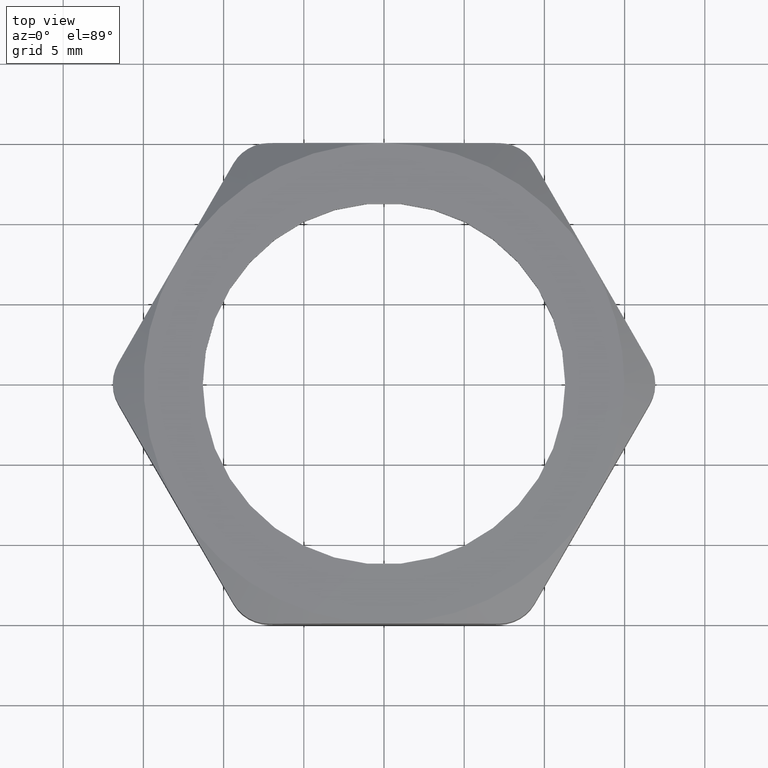
[diagram: clean part render]
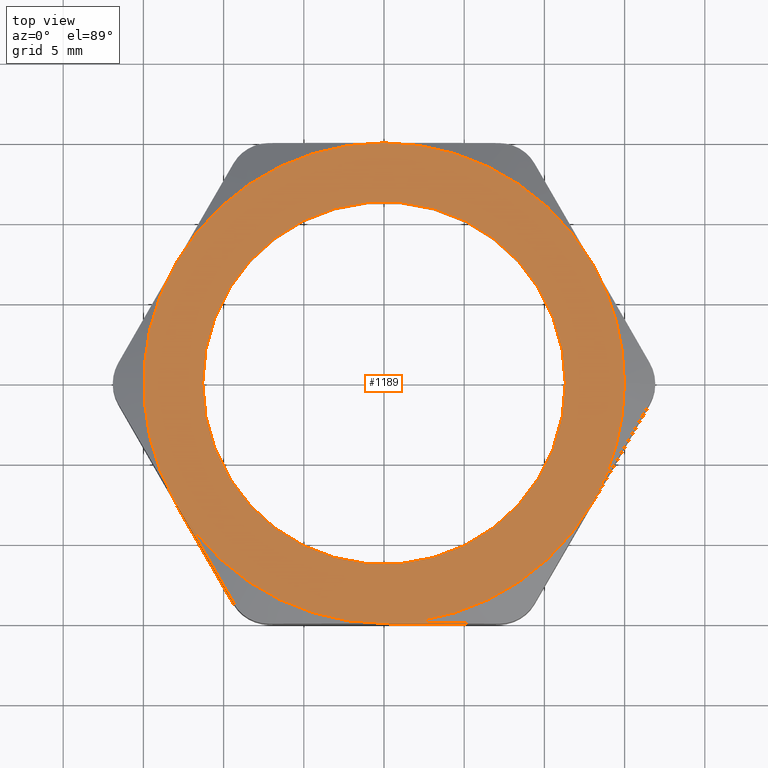
[diagram: same view with one face highlighted and labeled with its STEP entity id]
A machine part, top view. The second image highlights one B-rep face of the part: STEP entity #1189.
In plain terms, the highlighted planar face has unit normal (0, 0, -1).
Its self-contained STEP definition (entity closure, byte-faithful):
#248 = DIRECTION ( 'NONE',  ( 1.000000000000000000, 0.0000000000000000000, 0.0000000000000000000 ) ) ;
#249 = DIRECTION ( 'NONE',  ( 0.0000000000000000000, 0.0000000000000000000, 1.000000000000000000 ) ) ;
#250 = CARTESIAN_POINT ( 'NONE',  ( 0.0000000000000000000, 0.0000000000000000000, 0.2399999999999999900 ) ) ;
#251 = AXIS2_PLACEMENT_3D ( 'NONE', #250, #249, #248 ) ;
#252 = CIRCLE ( 'NONE', #251, 0.5900000000000000800 ) ;
#359 = CARTESIAN_POINT ( 'NONE',  ( 0.5109549882328191500, 0.2950000000000001000, 0.2399999999999999900 ) ) ;
#385 = CARTESIAN_POINT ( 'NONE',  ( 0.4450000000000000100, 5.572142936120458300E-017, 0.2399999999999999900 ) ) ;
#386 = CARTESIAN_POINT ( 'NONE',  ( -0.4450000000000000100, 0.0000000000000000000, 0.2399999999999999900 ) ) ;
#387 = DIRECTION ( 'NONE',  ( 1.000000000000000000, 0.0000000000000000000, 0.0000000000000000000 ) ) ;
#388 = DIRECTION ( 'NONE',  ( 0.0000000000000000000, 0.0000000000000000000, 1.000000000000000000 ) ) ;
#389 = AXIS2_PLACEMENT_3D ( 'NONE', #394, #388, #387 ) ;
#390 = CIRCLE ( 'NONE', #389, 0.4450000000000000100 ) ;
#394 = CARTESIAN_POINT ( 'NONE',  ( 0.0000000000000000000, 0.0000000000000000000, 0.2399999999999999900 ) ) ;
#447 = CARTESIAN_POINT ( 'NONE',  ( 0.5900000000000000800, 0.0000000000000000000, 0.2399999999999999900 ) ) ;
#606 = CARTESIAN_POINT ( 'NONE',  ( -0.5109549882328189300, -0.2949999999999997600, 0.2399999999999999900 ) ) ;
#758 = CARTESIAN_POINT ( 'NONE',  ( 0.5109549882328188200, -0.2950000000000000400, 0.2399999999999999900 ) ) ;
#856 = CARTESIAN_POINT ( 'NONE',  ( -0.5109549882328188200, 0.2949999999999999800, 0.2399999999999999900 ) ) ;
#940 = CARTESIAN_POINT ( 'NONE',  ( 5.914624404477003900E-017, -0.5899999999999999700, 0.2399999999999999900 ) ) ;
#1182 = ORIENTED_EDGE ( 'NONE', *, *, #1183, .T. ) ;
#1183 = EDGE_CURVE ( 'NONE', #2058, #2539, #1494, .T. ) ;
#1189 = ADVANCED_FACE ( 'NONE', ( #1694, #1605 ), #1693, .F. ) ;
#1190 = EDGE_LOOP ( 'NONE', ( #1193, #2524 ) ) ;
#1193 = ORIENTED_EDGE ( 'NONE', *, *, #2088, .F. ) ;
#1353 = DIRECTION ( 'NONE',  ( 1.000000000000000000, 0.0000000000000000000, 0.0000000000000000000 ) ) ;
#1354 = DIRECTION ( 'NONE',  ( 0.0000000000000000000, 0.0000000000000000000, 1.000000000000000000 ) ) ;
#1355 = CARTESIAN_POINT ( 'NONE',  ( 0.0000000000000000000, 0.0000000000000000000, 0.2399999999999999900 ) ) ;
#1356 = AXIS2_PLACEMENT_3D ( 'NONE', #1355, #1354, #1353 ) ;
#1357 = CIRCLE ( 'NONE', #1356, 0.5900000000000000800 ) ;
#1359 = DIRECTION ( 'NONE',  ( 1.000000000000000000, 0.0000000000000000000, 0.0000000000000000000 ) ) ;
#1360 = DIRECTION ( 'NONE',  ( 0.0000000000000000000, 0.0000000000000000000, 1.000000000000000000 ) ) ;
#1361 = CARTESIAN_POINT ( 'NONE',  ( 0.0000000000000000000, 0.0000000000000000000, 0.2399999999999999900 ) ) ;
#1362 = AXIS2_PLACEMENT_3D ( 'NONE', #1361, #1360, #1359 ) ;
#1363 = CIRCLE ( 'NONE', #1362, 0.4450000000000000100 ) ;
#1364 = DIRECTION ( 'NONE',  ( 1.000000000000000000, 0.0000000000000000000, 0.0000000000000000000 ) ) ;
#1365 = DIRECTION ( 'NONE',  ( 0.0000000000000000000, 0.0000000000000000000, 1.000000000000000000 ) ) ;
#1366 = AXIS2_PLACEMENT_3D ( 'NONE', #1373, #1365, #1364 ) ;
#1367 = CIRCLE ( 'NONE', #1366, 0.5900000000000000800 ) ;
#1368 = DIRECTION ( 'NONE',  ( 1.000000000000000000, 0.0000000000000000000, 0.0000000000000000000 ) ) ;
#1369 = DIRECTION ( 'NONE',  ( 0.0000000000000000000, 0.0000000000000000000, 1.000000000000000000 ) ) ;
#1370 = CARTESIAN_POINT ( 'NONE',  ( 0.0000000000000000000, 0.0000000000000000000, 0.2399999999999999900 ) ) ;
#1371 = AXIS2_PLACEMENT_3D ( 'NONE', #1370, #1369, #1368 ) ;
#1372 = CIRCLE ( 'NONE', #1371, 0.5900000000000000800 ) ;
#1373 = CARTESIAN_POINT ( 'NONE',  ( 0.0000000000000000000, 0.0000000000000000000, 0.2399999999999999900 ) ) ;
#1391 = DIRECTION ( 'NONE',  ( 1.000000000000000000, 0.0000000000000000000, 0.0000000000000000000 ) ) ;
#1392 = DIRECTION ( 'NONE',  ( 0.0000000000000000000, 0.0000000000000000000, 1.000000000000000000 ) ) ;
#1393 = CARTESIAN_POINT ( 'NONE',  ( 0.0000000000000000000, 0.0000000000000000000, 0.2399999999999999900 ) ) ;
#1394 = AXIS2_PLACEMENT_3D ( 'NONE', #1393, #1392, #1391 ) ;
#1395 = CIRCLE ( 'NONE', #1394, 0.5900000000000000800 ) ;
#1401 = CARTESIAN_POINT ( 'NONE',  ( 0.0000000000000000000, 0.5900000000000000800, 0.2399999999999999900 ) ) ;
#1403 = DIRECTION ( 'NONE',  ( 1.000000000000000000, 0.0000000000000000000, 0.0000000000000000000 ) ) ;
#1404 = DIRECTION ( 'NONE',  ( 0.0000000000000000000, 0.0000000000000000000, 1.000000000000000000 ) ) ;
#1405 = CARTESIAN_POINT ( 'NONE',  ( 0.0000000000000000000, 0.0000000000000000000, 0.2399999999999999900 ) ) ;
#1406 = AXIS2_PLACEMENT_3D ( 'NONE', #1405, #1404, #1403 ) ;
#1411 = CIRCLE ( 'NONE', #1406, 0.5900000000000000800 ) ;
#1491 = CARTESIAN_POINT ( 'NONE',  ( 0.0000000000000000000, 0.0000000000000000000, 0.2399999999999999900 ) ) ;
#1493 = DIRECTION ( 'NONE',  ( 0.0000000000000000000, 0.0000000000000000000, 1.000000000000000000 ) ) ;
#1494 = CIRCLE ( 'NONE', #1497, 0.5900000000000000800 ) ;
#1496 = DIRECTION ( 'NONE',  ( 1.000000000000000000, 0.0000000000000000000, 0.0000000000000000000 ) ) ;
#1497 = AXIS2_PLACEMENT_3D ( 'NONE', #1491, #1493, #1496 ) ;
#1595 = DIRECTION ( 'NONE',  ( -1.000000000000000000, 0.0000000000000000000, 0.0000000000000000000 ) ) ;
#1596 = DIRECTION ( 'NONE',  ( 0.0000000000000000000, 0.0000000000000000000, -1.000000000000000000 ) ) ;
#1597 = AXIS2_PLACEMENT_3D ( 'NONE', #1706, #1596, #1595 ) ;
#1605 = FACE_OUTER_BOUND ( 'NONE', #2522, .T. ) ;
#1693 = PLANE ( 'NONE',  #1597 ) ;
#1694 = FACE_BOUND ( 'NONE', #1190, .T. ) ;
#1706 = CARTESIAN_POINT ( 'NONE',  ( 4.097771990496394800E-016, 1.179999999999999900, 0.2399999999999999900 ) ) ;
#1968 = EDGE_CURVE ( 'NONE', #2002, #2058, #252, .T. ) ;
#2002 = VERTEX_POINT ( 'NONE', #447 ) ;
#2058 = VERTEX_POINT ( 'NONE', #359 ) ;
#2088 = EDGE_CURVE ( 'NONE', #2090, #2091, #390, .T. ) ;
#2090 = VERTEX_POINT ( 'NONE', #386 ) ;
#2091 = VERTEX_POINT ( 'NONE', #385 ) ;
#2195 = VERTEX_POINT ( 'NONE', #606 ) ;
#2237 = VERTEX_POINT ( 'NONE', #758 ) ;
#2306 = VERTEX_POINT ( 'NONE', #856 ) ;
#2323 = VERTEX_POINT ( 'NONE', #940 ) ;
#2512 = ORIENTED_EDGE ( 'NONE', *, *, #2513, .T. ) ;
#2513 = EDGE_CURVE ( 'NONE', #2306, #2195, #1372, .T. ) ;
#2514 = ORIENTED_EDGE ( 'NONE', *, *, #2515, .T. ) ;
#2515 = EDGE_CURVE ( 'NONE', #2195, #2323, #1367, .T. ) ;
#2521 = ORIENTED_EDGE ( 'NONE', *, *, #2526, .T. ) ;
#2522 = EDGE_LOOP ( 'NONE', ( #2521, #2512, #2514, #2542, #2544, #2536, #1182 ) ) ;
#2524 = ORIENTED_EDGE ( 'NONE', *, *, #2525, .F. ) ;
#2525 = EDGE_CURVE ( 'NONE', #2091, #2090, #1363, .T. ) ;
#2526 = EDGE_CURVE ( 'NONE', #2539, #2306, #1357, .T. ) ;
#2535 = EDGE_CURVE ( 'NONE', #2237, #2002, #1411, .T. ) ;
#2536 = ORIENTED_EDGE ( 'NONE', *, *, #1968, .T. ) ;
#2539 = VERTEX_POINT ( 'NONE', #1401 ) ;
#2542 = ORIENTED_EDGE ( 'NONE', *, *, #2543, .T. ) ;
#2543 = EDGE_CURVE ( 'NONE', #2323, #2237, #1395, .T. ) ;
#2544 = ORIENTED_EDGE ( 'NONE', *, *, #2535, .T. ) ;